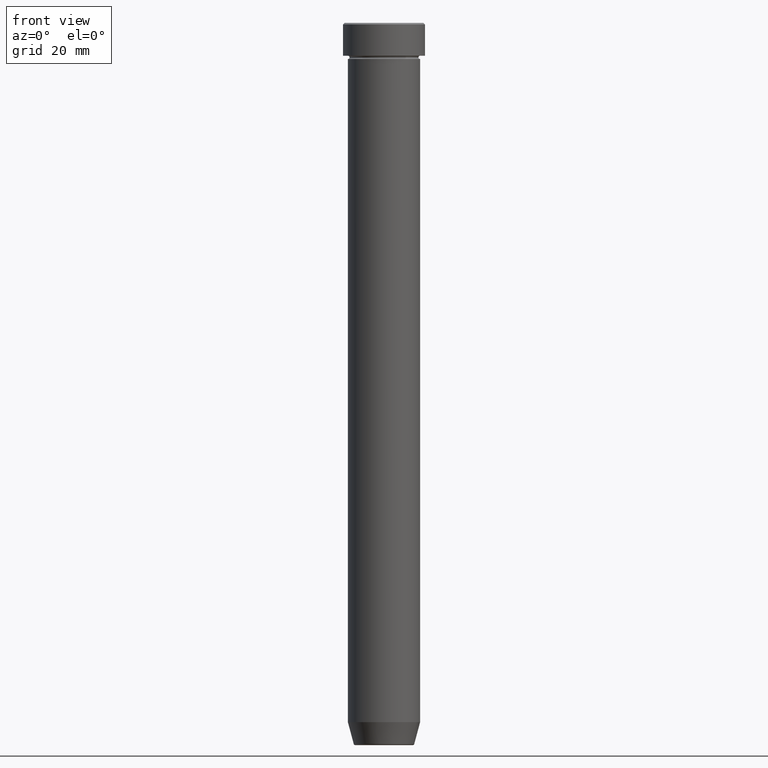
[diagram: clean part render]
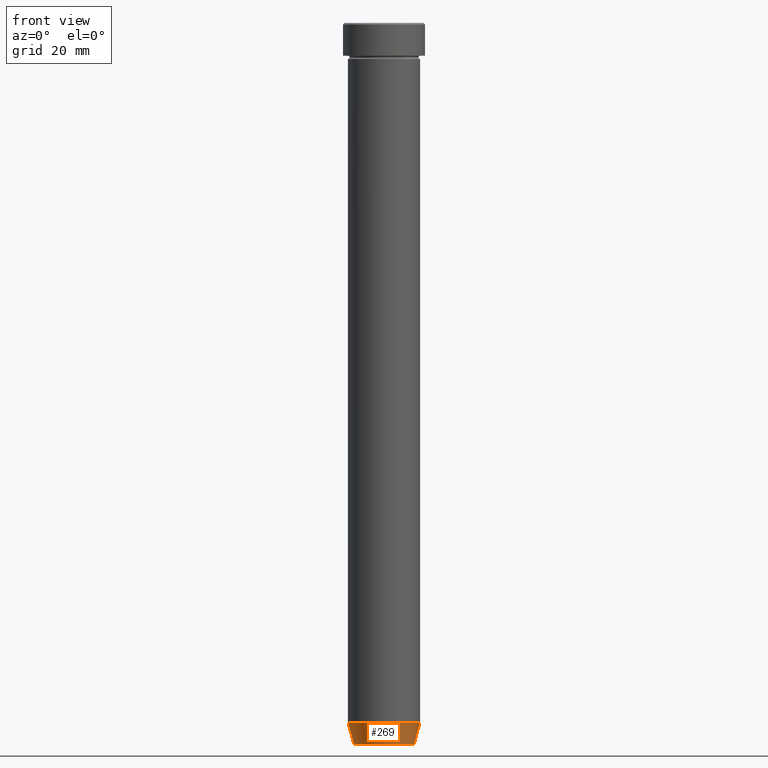
[diagram: same view with one face highlighted and labeled with its STEP entity id]
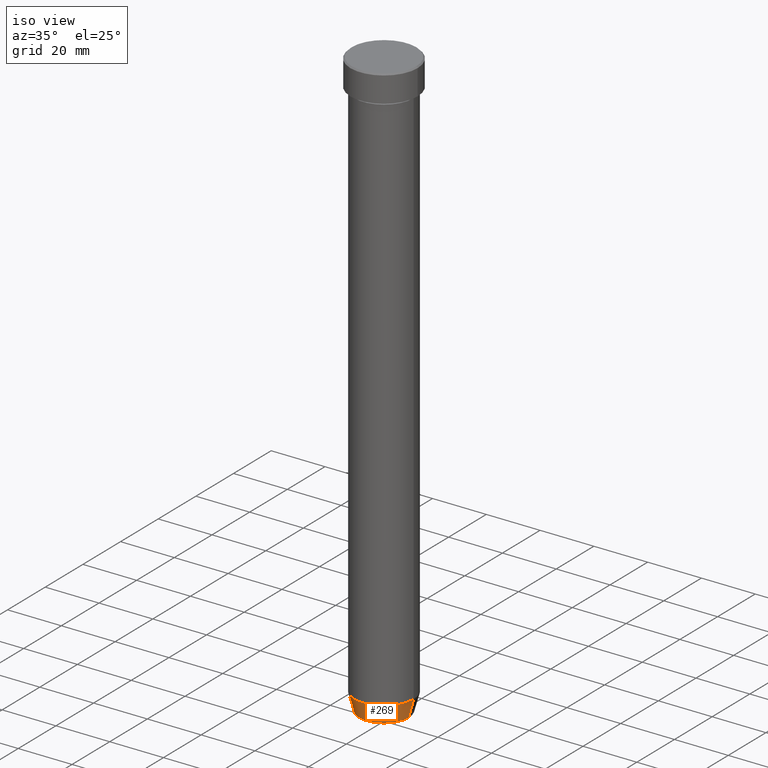
[diagram: same view with one face highlighted and labeled with its STEP entity id]
A machine part, front view. The second image highlights one B-rep face of the part: STEP entity #269.
A second angle (iso view) of the same face is appended — the face is thin or edge-on in the first view.
In plain terms, the highlighted conical surface has half-angle 15 deg.
Its self-contained STEP definition (entity closure, byte-faithful):
#11 = VECTOR ( 'NONE', #35, 1000.000000000000000 ) ;
#19 = DIRECTION ( 'NONE',  ( 1.000000000000000000, 0.000000000000000000, 0.000000000000000000 ) ) ;
#22 = DIRECTION ( 'NONE',  ( -0.000000000000000000, -0.000000000000000000, 1.000000000000000000 ) ) ;
#35 = DIRECTION ( 'NONE',  ( 0.2588190451025213501, 0.000000000000000000, 0.9659258262890680902 ) ) ;
#41 = EDGE_CURVE ( 'NONE', #256, #297, #483, .T. ) ;
#71 = LINE ( 'NONE', #470, #597 ) ;
#72 = CARTESIAN_POINT ( 'NONE',  ( 0.000000000000000000, 0.000000000000000000, -219.6294095225512706 ) ) ;
#79 = CIRCLE ( 'NONE', #452, 9.223655072137189492 ) ;
#119 = CARTESIAN_POINT ( 'NONE',  ( -11.00000000000000000, 1.347111479062088405E-15, -213.0000000000000284 ) ) ;
#120 = CARTESIAN_POINT ( 'NONE',  ( 0.000000000000000000, 0.000000000000000000, -213.0000000000000284 ) ) ;
#129 = CONICAL_SURFACE ( 'NONE', #166, 9.124355652982133691, 0.2617993877991500740 ) ;
#153 = CARTESIAN_POINT ( 'NONE',  ( 11.00000000000000000, 0.000000000000000000, -213.0000000000000284 ) ) ;
#165 = VERTEX_POINT ( 'NONE', #119 ) ;
#166 = AXIS2_PLACEMENT_3D ( 'NONE', #573, #286, #19 ) ;
#194 = ORIENTED_EDGE ( 'NONE', *, *, #500, .F. ) ;
#251 = EDGE_LOOP ( 'NONE', ( #459, #402, #320, #194 ) ) ;
#256 = VERTEX_POINT ( 'NONE', #557 ) ;
#258 = CARTESIAN_POINT ( 'NONE',  ( 9.124355652982133691, 0.000000000000000000, -220.0000000000000284 ) ) ;
#269 = ADVANCED_FACE ( 'NONE', ( #438 ), #129, .T. ) ;
#286 = DIRECTION ( 'NONE',  ( -0.000000000000000000, -0.000000000000000000, 1.000000000000000000 ) ) ;
#295 = DIRECTION ( 'NONE',  ( 1.000000000000000000, 0.000000000000000000, 0.000000000000000000 ) ) ;
#297 = VERTEX_POINT ( 'NONE', #153 ) ;
#305 = CIRCLE ( 'NONE', #383, 11.00000000000000000 ) ;
#320 = ORIENTED_EDGE ( 'NONE', *, *, #41, .T. ) ;
#338 = DIRECTION ( 'NONE',  ( -0.2588190451025213501, 3.169619151431772337E-17, 0.9659258262890680902 ) ) ;
#383 = AXIS2_PLACEMENT_3D ( 'NONE', #120, #22, #295 ) ;
#402 = ORIENTED_EDGE ( 'NONE', *, *, #545, .T. ) ;
#433 = CARTESIAN_POINT ( 'NONE',  ( -9.223655072137189492, 1.238341722557647202E-15, -219.6294095225512706 ) ) ;
#438 = FACE_OUTER_BOUND ( 'NONE', #251, .T. ) ;
#452 = AXIS2_PLACEMENT_3D ( 'NONE', #72, #484, #579 ) ;
#459 = ORIENTED_EDGE ( 'NONE', *, *, #546, .F. ) ;
#470 = CARTESIAN_POINT ( 'NONE',  ( -9.124355652982133691, 1.117411294470662806E-15, -220.0000000000000284 ) ) ;
#471 = VERTEX_POINT ( 'NONE', #433 ) ;
#483 = LINE ( 'NONE', #258, #11 ) ;
#484 = DIRECTION ( 'NONE',  ( -0.000000000000000000, -0.000000000000000000, 1.000000000000000000 ) ) ;
#500 = EDGE_CURVE ( 'NONE', #165, #297, #305, .T. ) ;
#545 = EDGE_CURVE ( 'NONE', #471, #256, #79, .T. ) ;
#546 = EDGE_CURVE ( 'NONE', #471, #165, #71, .T. ) ;
#557 = CARTESIAN_POINT ( 'NONE',  ( 9.223655072137189492, 0.000000000000000000, -219.6294095225512706 ) ) ;
#573 = CARTESIAN_POINT ( 'NONE',  ( 0.000000000000000000, 0.000000000000000000, -220.0000000000000284 ) ) ;
#579 = DIRECTION ( 'NONE',  ( -1.000000000000000000, 0.000000000000000000, 0.000000000000000000 ) ) ;
#597 = VECTOR ( 'NONE', #338, 1000.000000000000000 ) ;